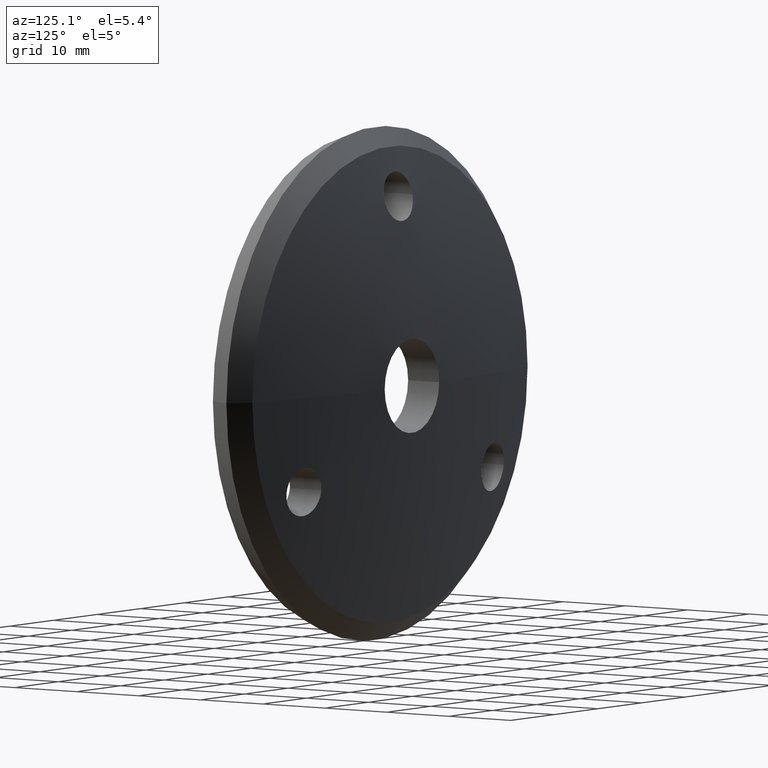
[diagram: clean part render]
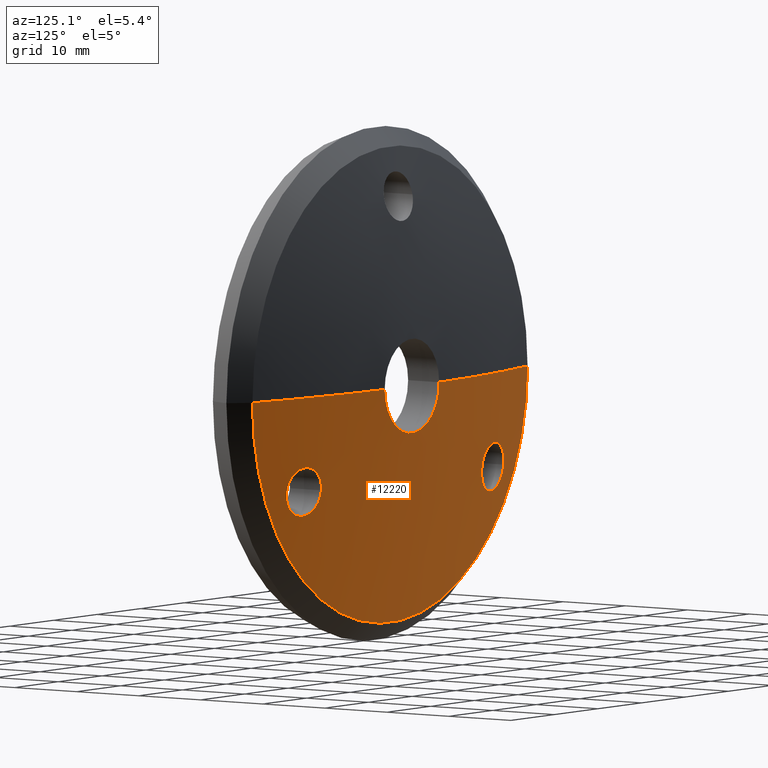
[diagram: same view with one face highlighted and labeled with its STEP entity id]
A machine part, auxiliary view. The second image highlights one B-rep face of the part: STEP entity #12220.
In plain terms, the highlighted spherical surface has radius 137.202 mm.
Its self-contained STEP definition (entity closure, byte-faithful):
#12 = CARTESIAN_POINT ( 'NONE',  ( -22.50988137689780189, 2.817094865762870715, -9.358595762347913904 ) ) ;
#18 = VERTEX_POINT ( 'NONE', #4379 ) ;
#56 = CARTESIAN_POINT ( 'NONE',  ( -19.68674065705360832, 3.218910011225227574, -9.901703773210174475 ) ) ;
#61 = CIRCLE ( 'NONE', #13051, 137.2019220182881440 ) ;
#125 = EDGE_LOOP ( 'NONE', ( #10223, #10959 ) ) ;
#172 = EDGE_CURVE ( 'NONE', #18, #5821, #2628, .T. ) ;
#224 = CARTESIAN_POINT ( 'NONE',  ( 24.79524798743407388, 2.079251724942865920, -13.34822851572565838 ) ) ;
#357 = CARTESIAN_POINT ( 'NONE',  ( 22.47053439792938789, 2.239519735841673409, -15.65207439251611099 ) ) ;
#402 = CARTESIAN_POINT ( 'NONE',  ( 19.19800545756231003, 2.858937687910312775, -14.64289977414203037 ) ) ;
#535 = CARTESIAN_POINT ( 'NONE',  ( 18.73311942214088077, 3.265168727164466933, -11.05217561660968073 ) ) ;
#818 = CARTESIAN_POINT ( 'NONE',  ( -21.20127086729368315, 2.436936741607419243, -15.72568155669498324 ) ) ;
#841 = CARTESIAN_POINT ( 'NONE',  ( -18.40063509461093005, 3.184687488071056727, -12.49999999999999822 ) ) ;
#907 = CARTESIAN_POINT ( 'NONE',  ( -24.90063509461093005, 2.161014716713486550, -12.28709607072887344 ) ) ;
#954 = CARTESIAN_POINT ( 'NONE',  ( -23.10418664403933775, 2.700742769122979503, -9.585472924996217614 ) ) ;
#1111 = CARTESIAN_POINT ( 'NONE',  ( 24.08846648249511091, 2.071091219748712575, -14.66006953737124618 ) ) ;
#1383 = CARTESIAN_POINT ( 'NONE',  ( 19.64658146472042333, 2.745300213471416839, -15.09343697874318302 ) ) ;
#1477 = CARTESIAN_POINT ( 'NONE',  ( 21.20630468683646441, 2.434163380145796030, -15.74696489451178572 ) ) ;
#1523 = CARTESIAN_POINT ( 'NONE',  ( 18.40063509461100111, 3.204324108505656632, -12.28731716297562393 ) ) ;
#1552 = VERTEX_POINT ( 'NONE', #4466 ) ;
#1564 = CARTESIAN_POINT ( 'NONE',  ( 23.10475451143748771, 2.700618226045541359, -9.585832849305971237 ) ) ;
#1608 = CARTESIAN_POINT ( 'NONE',  ( 20.04296988211132202, 3.183575505860270827, -9.667448936734100329 ) ) ;
#1681 = CARTESIAN_POINT ( 'NONE',  ( -24.08913364948105951, 2.071047275627936113, -14.65938603750719338 ) ) ;
#1717 = EDGE_CURVE ( 'NONE', #8078, #2697, #7417, .T. ) ;
#1721 = CARTESIAN_POINT ( 'NONE',  ( -24.46438077859136584, 2.058854433994938837, -14.14040230117570474 ) ) ;
#1809 = CARTESIAN_POINT ( 'NONE',  ( -18.42205885368258933, 3.141658454481170093, -12.92889015947616471 ) ) ;
#1850 = CARTESIAN_POINT ( 'NONE',  ( -19.49946751269711953, 2.782590263768787153, -14.94544333274493475 ) ) ;
#1886 = DIRECTION ( 'NONE',  ( -1.873600393855974325E-19, 1.000000000000000000, -0.000000000000000000 ) ) ;
#1939 = CARTESIAN_POINT ( 'NONE',  ( -18.83594851340723864, 3.266378989070227501, -10.86095358250941700 ) ) ;
#1987 = CARTESIAN_POINT ( 'NONE',  ( -21.46035830181032367, 2.995459029642072224, -9.248538902208535362 ) ) ;
#2056 = CARTESIAN_POINT ( 'NONE',  ( -20.23140713941404201, 3.162580020688157578, -9.568458194313562259 ) ) ;
#2105 = CARTESIAN_POINT ( 'NONE',  ( -22.09787127270784524, 2.890968009189119226, -9.274057570420149332 ) ) ;
#2114 = AXIS2_PLACEMENT_3D ( 'NONE', #2954, #1886, #9012 ) ;
#2151 = CARTESIAN_POINT ( 'NONE',  ( 23.61618503859329010, 2.106562191901684145, -15.09701925623447316 ) ) ;
#2188 = CARTESIAN_POINT ( 'NONE',  ( 24.46456085519105983, 2.058855274615191799, -14.14008136886290323 ) ) ;
#2251 = FACE_OUTER_BOUND ( 'NONE', #12088, .T. ) ;
#2459 = CARTESIAN_POINT ( 'NONE',  ( 19.06482085027036888, 2.895355399360250548, -14.48003219182013623 ) ) ;
#2596 = CARTESIAN_POINT ( 'NONE',  ( 24.73390321689298332, 2.265633294258804664, -11.45092072255848770 ) ) ;
#2628 = CIRCLE ( 'NONE', #2114, 6.249999999999849898 ) ;
#2685 = CARTESIAN_POINT ( 'NONE',  ( 18.83619991659790927, 3.266372269929408212, -10.86059095612243119 ) ) ;
#2695 = VERTEX_POINT ( 'NONE', #7702 ) ;
#2697 = VERTEX_POINT ( 'NONE', #9001 ) ;
#2703 = CARTESIAN_POINT ( 'NONE',  ( -24.56771457159540617, 2.060023692850104560, -13.94886476076998960 ) ) ;
#2726 = CARTESIAN_POINT ( 'NONE',  ( 19.68678848478469234, 3.218904070390783634, -9.901685266453631229 ) ) ;
#2833 = CARTESIAN_POINT ( 'NONE',  ( -20.58772126900224109, 2.549215436640195787, -15.57851547467623199 ) ) ;
#2954 = CARTESIAN_POINT ( 'NONE',  ( -9.101148846307532162E-19, 4.857572018106197653, 0.000000000000000000 ) ) ;
#3000 = CARTESIAN_POINT ( 'NONE',  ( -18.42139489580548783, 3.220628124129609304, -12.07472733035788970 ) ) ;
#3035 = CARTESIAN_POINT ( 'NONE',  ( -24.10158192086139550, 2.469140551541316064, -10.35528511493696691 ) ) ;
#3038 = DIRECTION ( 'NONE',  ( -1.000000000000000000, 0.000000000000000000, -1.224646799147353207E-16 ) ) ;
#3201 = CARTESIAN_POINT ( 'NONE',  ( 23.06808943147917645, 2.163696764786613436, -15.43233655172149810 ) ) ;
#3511 = ORIENTED_EDGE ( 'NONE', *, *, #10756, .F. ) ;
#3564 = CARTESIAN_POINT ( 'NONE',  ( 22.71658157655665278, 2.778022352540871154, -9.422567375521662569 ) ) ;
#3609 = CARTESIAN_POINT ( 'NONE',  ( 24.90063509461099756, 2.141205001286021758, -12.50000000000000711 ) ) ;
#3646 = CARTESIAN_POINT ( 'NONE',  ( 18.56877122800479896, 3.255064350365770576, -11.44633579734556506 ) ) ;
#3822 = AXIS2_PLACEMENT_3D ( 'NONE', #11350, #13227, #9148 ) ;
#3976 = CARTESIAN_POINT ( 'NONE',  ( -24.87928644923139743, 2.104717984558059474, -12.92907258034727747 ) ) ;
#3978 = CARTESIAN_POINT ( 'NONE',  ( -19.51732184079173038, 3.233333220518514572, -10.03887304459666652 ) ) ;
#4029 = CARTESIAN_POINT ( 'NONE',  ( -18.40063509461093361, 3.204365516194339847, -12.28686867924922232 ) ) ;
#4105 = CARTESIAN_POINT ( 'NONE',  ( -24.23506861837690352, 2.432569243258952074, -10.51802652405390504 ) ) ;
#4108 = CARTESIAN_POINT ( 'NONE',  ( 3.232237634562468506E-14, -132.2019220182881725, 0.000000000000000000 ) ) ;
#4119 = CARTESIAN_POINT ( 'NONE',  ( -6.249999999999849898, 4.857572018106197653, -2.314582450388493275E-15 ) ) ;
#4135 = CARTESIAN_POINT ( 'NONE',  ( 24.56752579193426556, 2.060011947045868208, -13.94931790273381544 ) ) ;
#4166 = VERTEX_POINT ( 'NONE', #4898 ) ;
#4230 = ORIENTED_EDGE ( 'NONE', *, *, #8868, .F. ) ;
#4379 = CARTESIAN_POINT ( 'NONE',  ( 6.249999999999849898, 4.857572018106197653, 0.000000000000000000 ) ) ;
#4466 = CARTESIAN_POINT ( 'NONE',  ( 24.90063509461099756, 2.141205001286021758, -12.50000000000000711 ) ) ;
#4467 = FACE_BOUND ( 'NONE', #125, .T. ) ;
#4542 = CARTESIAN_POINT ( 'NONE',  ( 22.09826794487404200, 2.890902955020616449, -9.274073901560210942 ) ) ;
#4577 = CARTESIAN_POINT ( 'NONE',  ( 23.28959211237146576, 2.661706920699579815, -9.685564197052364932 ) ) ;
#4676 = CARTESIAN_POINT ( 'NONE',  ( 18.42130358774675258, 3.220613773560843107, -12.07504099205186421 ) ) ;
#4736 = CARTESIAN_POINT ( 'NONE',  ( -18.56692682130289285, 3.061271767203444849, -13.54811089465113838 ) ) ;
#4898 = CARTESIAN_POINT ( 'NONE',  ( 31.55000000000005045, 1.323225072109828426, 0.000000000000000000 ) ) ;
#5007 = CARTESIAN_POINT ( 'NONE',  ( -18.56894078512578972, 3.255082966272786926, -11.44584038086317257 ) ) ;
#5141 = DIRECTION ( 'NONE',  ( 0.000000000000000000, 0.000000000000000000, 1.000000000000000000 ) ) ;
#5176 = CARTESIAN_POINT ( 'NONE',  ( 23.78198187254246676, 2.092308799108051343, -14.96298258098456913 ) ) ;
#5206 = AXIS2_PLACEMENT_3D ( 'NONE', #10290, #5141, #11246 ) ;
#5216 = CARTESIAN_POINT ( 'NONE',  ( 23.26031033781880453, 2.142110865524465169, -15.33140269317970983 ) ) ;
#5382 = AXIS2_PLACEMENT_3D ( 'NONE', #7240, #9346, #8319 ) ;
#5433 = SPHERICAL_SURFACE ( 'NONE', #5382, 137.2019220182881440 ) ;
#5484 = CARTESIAN_POINT ( 'NONE',  ( 18.40063509461099756, 3.165064974931601771, -12.71253004191548719 ) ) ;
#5568 = CARTESIAN_POINT ( 'NONE',  ( 22.51141340086000753, 2.816814077574405939, -9.358975474670618411 ) ) ;
#5630 = EDGE_CURVE ( 'NONE', #2695, #1552, #12835, .T. ) ;
#5698 = CARTESIAN_POINT ( 'NONE',  ( 23.64052137450945423, 2.583459584088036554, -9.921709560958717589 ) ) ;
#5747 = CARTESIAN_POINT ( 'NONE',  ( 18.50596478907113251, 3.246185179836198031, -11.65134175952970352 ) ) ;
#5770 = CIRCLE ( 'NONE', #5206, 137.2019220182881440 ) ;
#5821 = VERTEX_POINT ( 'NONE', #4119 ) ;
#5857 = CARTESIAN_POINT ( 'NONE',  ( -18.40063509461093361, 3.165023080334445016, -12.71298379931260669 ) ) ;
#5898 = CARTESIAN_POINT ( 'NONE',  ( -18.72994263244545010, 2.998828895293834673, -13.94130104551567229 ) ) ;
#6028 = CARTESIAN_POINT ( 'NONE',  ( -18.50570758739837629, 3.246120696105629033, -11.65248594141253236 ) ) ;
#6115 = CARTESIAN_POINT ( 'NONE',  ( -23.28898263613868380, 2.661830314097846539, -9.685287936340222004 ) ) ;
#6155 = CARTESIAN_POINT ( 'NONE',  ( -24.90063509461093716, 2.141205001286026199, -12.49999999999999289 ) ) ;
#6157 = DIRECTION ( 'NONE',  ( 1.224646799147353207E-16, 2.294498725216939218E-35, -1.000000000000000000 ) ) ;
#6208 = EDGE_CURVE ( 'NONE', #12534, #5821, #61, .T. ) ;
#6288 = ORIENTED_EDGE ( 'NONE', *, *, #172, .F. ) ;
#6413 = CARTESIAN_POINT ( 'NONE',  ( 18.40063509461100111, 3.184687488071022532, -12.50000000000000888 ) ) ;
#6452 = CARTESIAN_POINT ( 'NONE',  ( 18.42188647295795434, 3.141781288821329454, -12.92785887088139596 ) ) ;
#6594 = CARTESIAN_POINT ( 'NONE',  ( 24.79659854990288537, 2.236397164296403783, -11.65678851343565192 ) ) ;
#6718 = CARTESIAN_POINT ( 'NONE',  ( 24.49133041235387864, 2.359082844923520828, -10.86556165955894393 ) ) ;
#6742 = CARTESIAN_POINT ( 'NONE',  ( -22.67206716336210093, 2.212591729818495168, -15.59258729427728696 ) ) ;
#6785 = CARTESIAN_POINT ( 'NONE',  ( -19.66187133969511081, 2.744165668034393768, -15.07903309589202223 ) ) ;
#6867 = CARTESIAN_POINT ( 'NONE',  ( -19.19917314715076273, 2.858620369389826887, -14.64430626993869389 ) ) ;
#6918 = CARTESIAN_POINT ( 'NONE',  ( -18.83113655395683139, 2.965163677498570127, -14.13011756481651204 ) ) ;
#6957 = B_SPLINE_CURVE_WITH_KNOTS ( 'NONE', 3,
 ( #6155, #907, #10164, #7039, #12204, #9088, #13178, #4105, #3035, #7078, #11151, #6115, #954, #10090, #12, #2105, #12127, #1987, #8065, #8145, #12244, #2056, #8029, #56, #3978, #7156, #9211, #1939, #11114, #5007, #6028, #3000, #4029, #10126 ),
 .UNSPECIFIED., .F., .F.,
 ( 4, 2, 2, 2, 2, 2, 2, 2, 2, 2, 2, 2, 2, 2, 2, 2, 4 ),
 ( 0.002548666607705022367, 0.003189422759397100675, 0.003830178911089179416, 0.004470935062781258157, 0.005111691214473336464, 0.005752447366165414772, 0.006393203517857493079, 0.007033959669549572254, 0.007674715821241650561, 0.008315471972933728001, 0.008956228124625806308, 0.009596984276317886350, 0.01023774042800996466, 0.01087849657970204470, 0.01151925273139412301, 0.01216000888308620131, 0.01280076503477827962 ),
 .UNSPECIFIED. ) ;
#6974 = CARTESIAN_POINT ( 'NONE',  ( -31.55000000000002203, 1.323225072109828426, -3.863760651309905284E-15 ) ) ;
#7039 = CARTESIAN_POINT ( 'NONE',  ( -24.79602971742120232, 2.236712070807801211, -11.65438722897296131 ) ) ;
#7078 = CARTESIAN_POINT ( 'NONE',  ( -23.80397246905034336, 2.544686321053911460, -10.05662519552145540 ) ) ;
#7156 = CARTESIAN_POINT ( 'NONE',  ( -19.21341440803374212, 3.254175612781293747, -10.33941520544697212 ) ) ;
#7194 = CARTESIAN_POINT ( 'NONE',  ( 24.90063509461099756, 2.141205001286021758, -12.50000000000000711 ) ) ;
#7240 = CARTESIAN_POINT ( 'NONE',  ( 3.232237634562468506E-14, -132.2019220182881725, 0.000000000000000000 ) ) ;
#7378 = CARTESIAN_POINT ( 'NONE',  ( 18.56692412936763503, 3.061291681362299233, -13.54789967619399782 ) ) ;
#7417 = B_SPLINE_CURVE_WITH_KNOTS ( 'NONE', 3,
 ( #10799, #5857, #1809, #7853, #4736, #5898, #6918, #11873, #6867, #1850, #6785, #8917, #12901, #2833, #9956, #818, #10978, #12000, #13038, #7939, #6742, #8969, #9769, #1681, #8794, #1721, #2703, #9861, #13126, #3976, #9085, #11025 ),
 .UNSPECIFIED., .F., .F.,
 ( 4, 2, 2, 2, 2, 2, 2, 2, 2, 2, 2, 2, 2, 2, 2, 4 ),
 ( 0.01280076503477827789, 0.01344107767929983953, 0.01408139032382140290, 0.01472170296834296455, 0.01536201561286452792, 0.01600232825738609130, 0.01664264090190765294, 0.01728295354642921458, 0.01792326619095077622, 0.01856357883547234133, 0.01920389147999390297, 0.02048451676903702973, 0.02112482941355859484, 0.02176514205808015648, 0.02240545470260171812, 0.02304576734712328323 ),
 .UNSPECIFIED. ) ;
#7422 = CARTESIAN_POINT ( 'NONE',  ( 20.00753297968704558, 2.664960523333355535, -15.33533113202369513 ) ) ;
#7460 = CARTESIAN_POINT ( 'NONE',  ( 22.67366774507893723, 2.212377800314167420, -15.59211556151202949 ) ) ;
#7560 = CARTESIAN_POINT ( 'NONE',  ( 22.05240838295251393, 2.299402638675524191, -15.73208695246785993 ) ) ;
#7603 = ORIENTED_EDGE ( 'NONE', *, *, #5630, .F. ) ;
#7702 = CARTESIAN_POINT ( 'NONE',  ( 18.40063509461100111, 3.184687488071022532, -12.50000000000000888 ) ) ;
#7853 = CARTESIAN_POINT ( 'NONE',  ( -18.50538748378034981, 3.089830719161699157, -13.34561739513034873 ) ) ;
#7939 = CARTESIAN_POINT ( 'NONE',  ( -22.46584614086420117, 2.240160594145616635, -15.65330219786562438 ) ) ;
#8029 = CARTESIAN_POINT ( 'NONE',  ( -20.04329314670211204, 3.183542244344759631, -9.667249303854726250 ) ) ;
#8065 = CARTESIAN_POINT ( 'NONE',  ( -21.24966479377535578, 3.027404161120517134, -9.267905812885500083 ) ) ;
#8078 = VERTEX_POINT ( 'NONE', #841 ) ;
#8080 = EDGE_CURVE ( 'NONE', #4166, #12534, #9127, .T. ) ;
#8145 = CARTESIAN_POINT ( 'NONE',  ( -20.83425279380761452, 3.086578895153181623, -9.347107684130872229 ) ) ;
#8319 = DIRECTION ( 'NONE',  ( 1.000000000000000000, 0.000000000000000000, 0.000000000000000000 ) ) ;
#8495 = CARTESIAN_POINT ( 'NONE',  ( 18.72902684991187172, 2.999160907536962295, -13.93929576982487717 ) ) ;
#8589 = CARTESIAN_POINT ( 'NONE',  ( 20.78227034995510536, 2.510420471570194323, -15.65987813982265209 ) ) ;
#8687 = CARTESIAN_POINT ( 'NONE',  ( 24.25018901483302614, 2.431399066450202096, -10.50461781369131664 ) ) ;
#8769 = CARTESIAN_POINT ( 'NONE',  ( 21.46379757753331319, 2.994918816247443161, -9.248424190157013669 ) ) ;
#8794 = CARTESIAN_POINT ( 'NONE',  ( -24.22559588141354325, 2.064401577700413437, -14.49440753865651565 ) ) ;
#8822 = CARTESIAN_POINT ( 'NONE',  ( 19.51747284296358842, 3.233324658043815969, -10.03870428971312201 ) ) ;
#8868 = EDGE_CURVE ( 'NONE', #1552, #2695, #13045, .T. ) ;
#8917 = CARTESIAN_POINT ( 'NONE',  ( -20.01028492841126294, 2.666524560421610346, -15.31351102980279322 ) ) ;
#8969 = CARTESIAN_POINT ( 'NONE',  ( -23.26156005881909294, 2.139785407298298026, -15.35431241017612614 ) ) ;
#9001 = CARTESIAN_POINT ( 'NONE',  ( -24.90063509461093716, 2.141205001286026199, -12.49999999999999289 ) ) ;
#9012 = DIRECTION ( 'NONE',  ( -1.000000000000000000, 0.000000000000000000, 0.000000000000000000 ) ) ;
#9085 = CARTESIAN_POINT ( 'NONE',  ( -24.90063509461095137, 2.121408997394307328, -12.71275656522473341 ) ) ;
#9088 = CARTESIAN_POINT ( 'NONE',  ( -24.57192641662134491, 2.328026766935543446, -11.06012530453716280 ) ) ;
#9127 = CIRCLE ( 'NONE', #3822, 31.55000000000002913 ) ;
#9148 = DIRECTION ( 'NONE',  ( -1.000000000000000000, 0.000000000000000000, 0.000000000000000000 ) ) ;
#9211 = CARTESIAN_POINT ( 'NONE',  ( -19.07698360008823002, 3.260822047868975559, -10.50369048145386408 ) ) ;
#9346 = DIRECTION ( 'NONE',  ( 0.000000000000000000, 0.000000000000000000, -1.000000000000000000 ) ) ;
#9479 = CARTESIAN_POINT ( 'NONE',  ( 18.50536167544482424, 3.089831189085348484, -13.34565713732285097 ) ) ;
#9626 = EDGE_CURVE ( 'NONE', #2697, #8078, #6957, .T. ) ;
#9652 = CARTESIAN_POINT ( 'NONE',  ( 21.88877142392344766, 2.926535432442598061, -9.251778241313346030 ) ) ;
#9690 = CARTESIAN_POINT ( 'NONE',  ( 24.87987726198225147, 2.184031337052465993, -12.07563376951321743 ) ) ;
#9769 = CARTESIAN_POINT ( 'NONE',  ( -23.62795496054672739, 2.102967424068519442, -15.11526273863914405 ) ) ;
#9797 = CARTESIAN_POINT ( 'NONE',  ( 24.90063509461100111, 2.161032941992547141, -12.28690019545040890 ) ) ;
#9836 = CARTESIAN_POINT ( 'NONE',  ( 20.83437806431916073, 3.086562758790535543, -9.347065408173568457 ) ) ;
#9861 = CARTESIAN_POINT ( 'NONE',  ( -24.73290931898142020, 2.070269436158603149, -13.55268579159519859 ) ) ;
#9956 = CARTESIAN_POINT ( 'NONE',  ( -20.78828401340295429, 2.511226757958604061, -15.64058916872837557 ) ) ;
#10090 = CARTESIAN_POINT ( 'NONE',  ( -22.71397609681277530, 2.778530502520840884, -9.421593579331640100 ) ) ;
#10126 = CARTESIAN_POINT ( 'NONE',  ( -18.40063509461093005, 3.184687488071056727, -12.49999999999999822 ) ) ;
#10136 = ORIENTED_EDGE ( 'NONE', *, *, #8080, .T. ) ;
#10164 = CARTESIAN_POINT ( 'NONE',  ( -24.87991786159579277, 2.184048315673503549, -12.07538122676634984 ) ) ;
#10223 = ORIENTED_EDGE ( 'NONE', *, *, #1717, .F. ) ;
#10242 = CARTESIAN_POINT ( 'NONE',  ( 24.73309989053668900, 2.070281293100495468, -13.55222835220999400 ) ) ;
#10290 = CARTESIAN_POINT ( 'NONE',  ( 3.232237634562468506E-14, -132.2019220182881725, 0.000000000000000000 ) ) ;
#10640 = CARTESIAN_POINT ( 'NONE',  ( 21.25008505732217046, 3.027342584839716189, -9.267844102233853576 ) ) ;
#10756 = EDGE_CURVE ( 'NONE', #4166, #18, #5770, .T. ) ;
#10782 = CARTESIAN_POINT ( 'NONE',  ( 19.21296518256648511, 3.254204626064963968, -10.33987890032921975 ) ) ;
#10799 = CARTESIAN_POINT ( 'NONE',  ( -18.40063509461093005, 3.184687488071056727, -12.49999999999999822 ) ) ;
#10959 = ORIENTED_EDGE ( 'NONE', *, *, #9626, .F. ) ;
#10978 = CARTESIAN_POINT ( 'NONE',  ( -21.41512424985984353, 2.400440913634828366, -15.74831518860368362 ) ) ;
#11025 = CARTESIAN_POINT ( 'NONE',  ( -24.90063509461093716, 2.141205001286026199, -12.49999999999999289 ) ) ;
#11114 = CARTESIAN_POINT ( 'NONE',  ( -18.73335062647690918, 3.265174730685996174, -11.05171009403649052 ) ) ;
#11151 = CARTESIAN_POINT ( 'NONE',  ( -23.63829586766890500, 2.583968210950531752, -9.920079202884611647 ) ) ;
#11246 = DIRECTION ( 'NONE',  ( 1.000000000000000000, 0.000000000000000000, 0.000000000000000000 ) ) ;
#11278 = CARTESIAN_POINT ( 'NONE',  ( 24.22592916140611052, 2.064388822234831888, -14.49396728962067016 ) ) ;
#11319 = CARTESIAN_POINT ( 'NONE',  ( 24.87918865581805150, 2.104688168561583694, -12.92956229235876897 ) ) ;
#11350 = CARTESIAN_POINT ( 'NONE',  ( -2.479195016265073111E-19, 1.323225072109827538, 0.000000000000000000 ) ) ;
#11427 = EDGE_LOOP ( 'NONE', ( #4230, #7603 ) ) ;
#11442 = ORIENTED_EDGE ( 'NONE', *, *, #6208, .T. ) ;
#11579 = CARTESIAN_POINT ( 'NONE',  ( 18.83064512873360030, 2.965317983956472059, -14.12930027288703272 ) ) ;
#11666 = CARTESIAN_POINT ( 'NONE',  ( 19.07663759057396646, 3.260830947747304087, -10.50419333762103236 ) ) ;
#11797 = CARTESIAN_POINT ( 'NONE',  ( 20.62933077722842512, 3.113818854240225864, -9.407181858293636623 ) ) ;
#11873 = CARTESIAN_POINT ( 'NONE',  ( -19.06510421951331935, 2.895278252250548245, -14.48037506290877374 ) ) ;
#12000 = CARTESIAN_POINT ( 'NONE',  ( -21.83709290843224693, 2.332254735294973180, -15.75149971646527192 ) ) ;
#12088 = EDGE_LOOP ( 'NONE', ( #10136, #11442, #6288, #3511 ) ) ;
#12127 = CARTESIAN_POINT ( 'NONE',  ( -21.88791946909317687, 2.926685597566469621, -9.251631077916750101 ) ) ;
#12204 = CARTESIAN_POINT ( 'NONE',  ( -24.73382609678784760, 2.265669995973892625, -11.45065955439485705 ) ) ;
#12220 = ADVANCED_FACE ( 'NONE', ( #12771, #4467, #2251 ), #5433, .T. ) ;
#12244 = CARTESIAN_POINT ( 'NONE',  ( -20.62738815909948542, 3.114063740227540844, -9.407895367833413403 ) ) ;
#12421 = CARTESIAN_POINT ( 'NONE',  ( 24.90063509461100821, 2.121391305322573473, -12.71294670988385533 ) ) ;
#12534 = VERTEX_POINT ( 'NONE', #6974 ) ;
#12660 = CARTESIAN_POINT ( 'NONE',  ( 21.83862506368915035, 2.332017626427016932, -15.75139776186985152 ) ) ;
#12739 = CARTESIAN_POINT ( 'NONE',  ( 20.23138901373869913, 3.162589081365667631, -9.568391716429205829 ) ) ;
#12771 = FACE_BOUND ( 'NONE', #11427, .T. ) ;
#12783 = CARTESIAN_POINT ( 'NONE',  ( 18.40063509461100111, 3.184687488071022532, -12.50000000000000888 ) ) ;
#12835 = B_SPLINE_CURVE_WITH_KNOTS ( 'NONE', 3,
 ( #12783, #1523, #4676, #5747, #3646, #535, #2685, #11666, #10782, #8822, #2726, #1608, #12739, #11797, #9836, #10640, #8769, #9652, #4542, #5568, #3564, #1564, #4577, #5698, #12837, #8687, #6718, #2596, #6594, #9690, #9797, #3609 ),
 .UNSPECIFIED., .F., .F.,
 ( 4, 2, 2, 2, 2, 2, 2, 2, 2, 2, 2, 2, 2, 2, 2, 4 ),
 ( 0.002674754707660566538, 0.003315336928196353436, 0.003955919148732139901, 0.004596501369267926365, 0.005237083589803713697, 0.005877665810339500162, 0.006518248030875287494, 0.007158830251411073958, 0.007799412471946860423, 0.008439994692482646887, 0.009080576913018433352, 0.009721159133554221551, 0.01036174135409000802, 0.01164290579516157748, 0.01228348801569736047, 0.01292407023623314347 ),
 .UNSPECIFIED. ) ;
#12837 = CARTESIAN_POINT ( 'NONE',  ( 23.80523129255123393, 2.544376125982338532, -10.05778832055524674 ) ) ;
#12901 = CARTESIAN_POINT ( 'NONE',  ( -20.19849393735744414, 2.626881412110841918, -15.41518942573234163 ) ) ;
#13038 = CARTESIAN_POINT ( 'NONE',  ( -22.04724674802626083, 2.300173184149437500, -15.73273614719368929 ) ) ;
#13045 = B_SPLINE_CURVE_WITH_KNOTS ( 'NONE', 3,
 ( #7194, #12421, #11319, #224, #10242, #4135, #2188, #11278, #1111, #5176, #2151, #5216, #3201, #7460, #357, #7560, #12660, #1477, #8589, #7422, #1383, #402, #2459, #11579, #8495, #7378, #9479, #6452, #5484, #6413 ),
 .UNSPECIFIED., .F., .F.,
 ( 4, 2, 2, 2, 2, 2, 2, 2, 2, 2, 2, 2, 2, 2, 4 ),
 ( 0.01292407023623314347, 0.01356419225118052352, 0.01420431426612790184, 0.01484443628107528189, 0.01548455829602266194, 0.01612468031097004026, 0.01676480232591742031, 0.01740492434086480036, 0.01804504635581218042, 0.01932529038570694052, 0.02060553441560169716, 0.02124565643054907374, 0.02188577844549645379, 0.02252590046044383038, 0.02316602247539120696 ),
 .UNSPECIFIED. ) ;
#13051 = AXIS2_PLACEMENT_3D ( 'NONE', #4108, #6157, #3038 ) ;
#13126 = CARTESIAN_POINT ( 'NONE',  ( -24.79515248673736494, 2.079222603710677131, -13.34870679242762215 ) ) ;
#13178 = CARTESIAN_POINT ( 'NONE',  ( -24.47081202718524295, 2.361882803260258346, -10.87085373060151561 ) ) ;
#13227 = DIRECTION ( 'NONE',  ( -1.873600393855974325E-19, 1.000000000000000000, -0.000000000000000000 ) ) ;